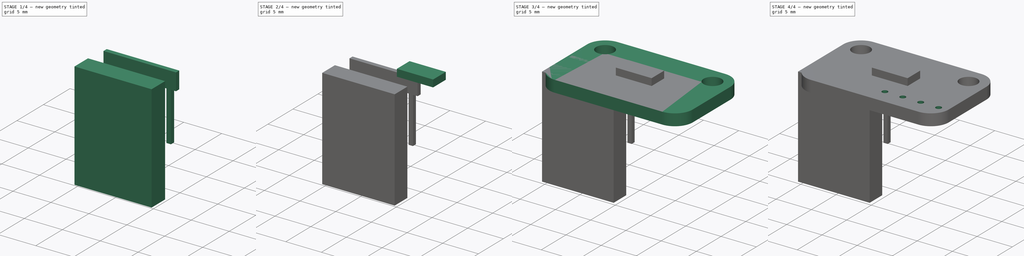
[diagram: build sequence overview — one tinted view per stage of 4, left to right]
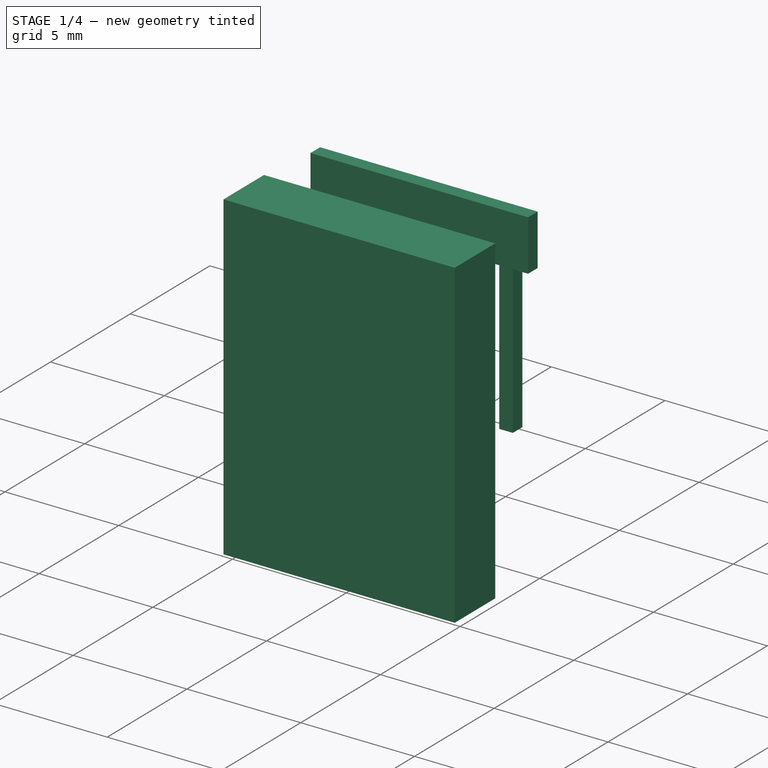
[diagram: stage 1 of 4 — iso view after this stage's code; geometry added in this stage tinted green]
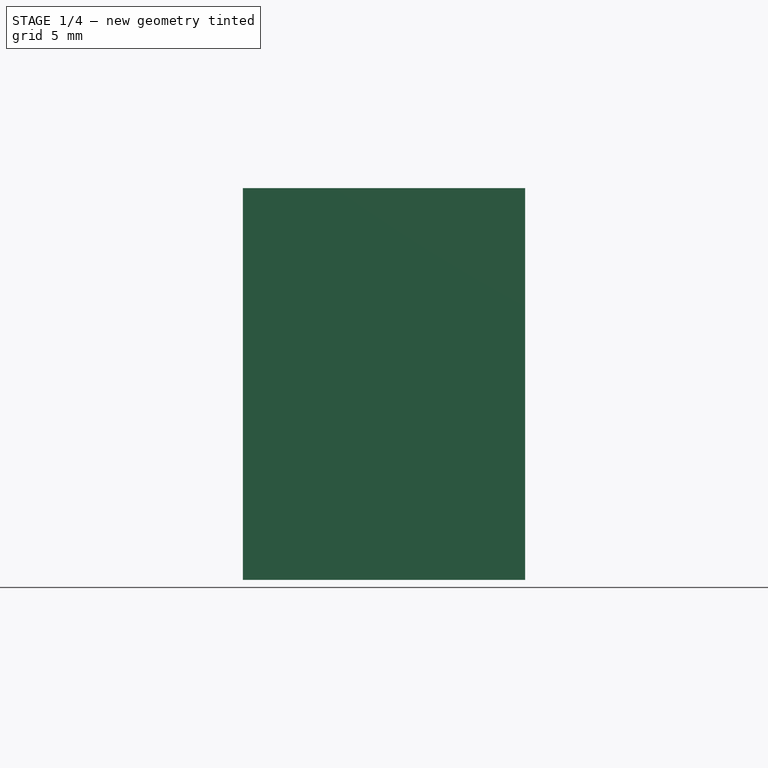
[diagram: stage 1 of 4 — front view after this stage's code; geometry added in this stage tinted green]
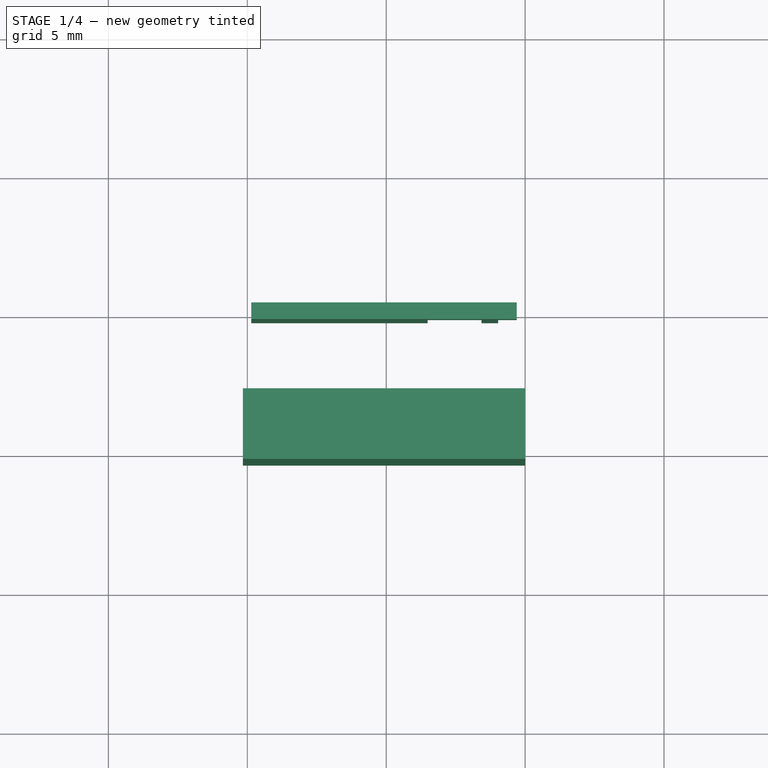
[diagram: stage 1 of 4 — top view after this stage's code; geometry added in this stage tinted green]
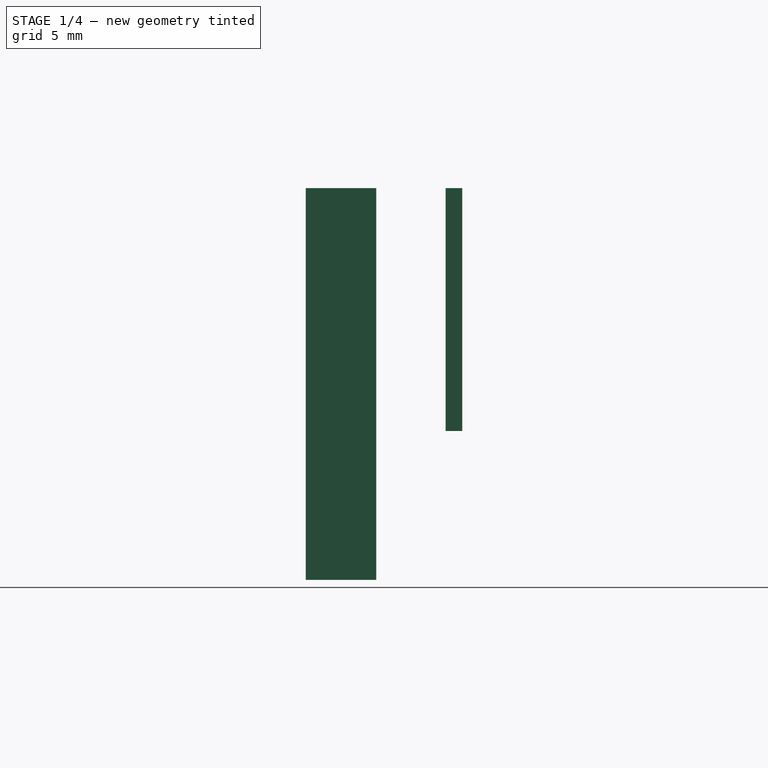
[diagram: stage 1 of 4 — right view after this stage's code; geometry added in this stage tinted green]
FCSTD DOCUMENT  (FreeCAD 0.19R24276 (Git))
Label: Adafruit_I2C_TempSens
License: All rights reserved
LicenseURL: http://en.wikipedia.org/wiki/All_rights_reserved
objects: Sketcher::SketchObject×8, PartDesign::Pad×5, PartDesign::Body×5, PartDesign::Pocket×3, PartDesign::LinearPattern×3, Spreadsheet::Sheet×1, App::Part×1
note: 32 computed .brp shape members not serialized (recipe doc carries the construction recipe); baked Part::Feature solids carry a one-line shape summary decoded from their .brp

FEATURE [PartDesign::Body] Body002  label="PinBlock"
  Group = -> [Sketch004,Pad002]
  Origin = -> Origin006
  Placement = pos=(0,0,-1.6) rot=(0,0,1;0rad)
  Tip = -> Pad002
FEATURE [Sketcher::SketchObject] Sketch005
  FullyConstrained = true
  MapMode = 5
  Placement = pos=(0,0,0) rot=(1,0,0;1.5708rad)
  Support = -> [XZ_Plane007]
  expr: Constraints[11] = <<params>>.pin_square_block_dim + <<params>>.pin_leng
  expr: Constraints[10] = <<params>>.temp_leng / 2 - <<params>>.std_tol
  expr: Constraints[9] = <<params>>.std_tol
  sketch-geometry (4):
    g0: LineSegment StartX=-0.3 StartY=0 StartZ=0 EndX=-9.86 EndY=0 EndZ=0
    g1: LineSegment StartX=-9.86 StartY=0 StartZ=0 EndX=-9.86 EndY=-8.74 EndZ=0
    g2: LineSegment StartX=-9.86 StartY=-8.74 StartZ=0 EndX=-0.3 EndY=-8.74 EndZ=0
    g3: LineSegment StartX=-0.3 StartY=-8.74 StartZ=0 EndX=-0.3 EndY=0 EndZ=0
  constraints (12):
    c: Coincident(g0,g1)
    c: Coincident(g1,g2)
    c: Coincident(g2,g3)
    c: Coincident(g3,g0)
    c: Horizontal(g0)
    c: Horizontal(g2)
    c: Vertical(g1)
    c: Vertical(g3)
    c: PointOnObject(g0,g-1)
    c: DistanceX(g0,g-1) = 0.3
    c: DistanceX(g0,g-1) = 9.86
    c: DistanceY(g1,g1) = 8.74
FEATURE [PartDesign::Pad] Pad003
  Direction = (1,1,1)
  Length = 0.6
  Length2 = 100
  Midplane = true
  Placement = pos=(0,0,0) rot=(1,0,0;1.5708rad)
  Profile = -> Sketch005
  Type = 0
  expr: Length = <<params>>.pin_width
FEATURE [Sketcher::SketchObject] Sketch006
  FullyConstrained = true
  MapMode = 5
  Placement = pos=(0,0,0) rot=(1,0,0;1.5708rad)
  Support = -> [XZ_Plane007]
  expr: Constraints[32] = <<params>>.pin_spacing
  expr: Constraints[25] = <<params>>.pin_leng * 2
  expr: Constraints[27] = <<params>>.pin_square_block_dim / 2
  expr: Constraints[22] = <<params>>.pin_width
  expr: Constraints[24] = <<params>>.pin_square_block_dim - <<params>>.std_tol
  sketch-geometry (13):
    g0: LineSegment StartX=0.97 StartY=-2.24 StartZ=0 EndX=-0.97 EndY=-2.24 EndZ=0
    g1: LineSegment StartX=-0.97 StartY=-2.24 StartZ=0 EndX=-0.97 EndY=-14.64 EndZ=0
    g2: LineSegment StartX=-0.97 StartY=-14.64 StartZ=0 EndX=0.97 EndY=-14.64 EndZ=0
    g3: LineSegment StartX=0.97 StartY=-14.64 StartZ=0 EndX=0.97 EndY=-2.24 EndZ=0
    g4: LineSegment StartX=-1.57 StartY=-2.24 StartZ=0 EndX=-3.51 EndY=-2.24 EndZ=0
    g5: LineSegment StartX=-3.51 StartY=-2.24 StartZ=0 EndX=-3.51 EndY=-14.64 EndZ=0
    g6: LineSegment StartX=-3.51 StartY=-14.64 StartZ=0 EndX=-1.57 EndY=-14.64 EndZ=0
    g7: LineSegment StartX=-1.57 StartY=-14.64 StartZ=0 EndX=-1.57 EndY=-2.24 EndZ=0
    g8: LineSegment StartX=-1.57 StartY=-2.24 StartZ=0 EndX=-0.97 EndY=-2.24 EndZ=0
    g9: LineSegment StartX=-1.57 StartY=-14.64 StartZ=0 EndX=-0.97 EndY=-14.64 EndZ=0
    g10: GeomPoint X=-1.27 Y=-2.24 Z=0
    g11: LineSegment StartX=0.97 StartY=-2.24 StartZ=0 EndX=1.57 EndY=-2.24 EndZ=0
    g12: GeomPoint X=1.27 Y=-2.24 Z=0
  constraints (33):
    c: Coincident(g0,g1)
    c: Coincident(g1,g2)
    c: Coincident(g2,g3)
    c: Coincident(g3,g0)
    c: Horizontal(g0)
    c: Horizontal(g2)
    c: Vertical(g1)
    c: Vertical(g3)
    c: Coincident(g4,g5)
    c: Coincident(g5,g6)
    c: Coincident(g6,g7)
    c: Coincident(g7,g4)
    c: Horizontal(g4)
    c: Horizontal(g6)
    c: Vertical(g5)
    c: Vertical(g7)
    c: Coincident(g8,g4)
    c: Coincident(g8,g0)
    c: Coincident(g9,g6)
    c: Coincident(g9,g1)
    c: Horizontal(g8)
    c: Horizontal(g9)
    c: DistanceX(g9,g9) = 0.6
    c: Equal(g4,g0)
    c: DistanceY(g0,g-1) = 2.24
    c: DistanceY(g3,g3) = 12.4
    c: Symmetric(g0,g4,g10)
    c: DistanceX(g10,g-1) = 1.27
    c: Coincident(g11,g0)
    c: Horizontal(g11)
    c: Equal(g8,g11)
    c: Symmetric(g0,g11,g12)
    c: DistanceX(g10,g12) = 2.54
FEATURE [PartDesign::Pocket] Pocket002
  BaseFeature = -> Pad003
  Length = 5
  Length2 = 100
  Midplane = true
  Placement = pos=(0,0,0) rot=(1,0,0;1.5708rad)
  Profile = -> Sketch006
  Type = 1
FEATURE [PartDesign::Body] Body003  label="Pins"
  Group = -> [Sketch005,Pad003,Sketch006,Pocket002,LinearPattern002]
  Origin = -> Origin007
  Placement = pos=(0,-4.1,-1.6) rot=(0,0,1;0rad)
  Tip = -> LinearPattern002
FEATURE [Sketcher::SketchObject] Sketch007
  FullyConstrained = true
  MapMode = 5
  Support = -> [XY_Plane008]
  expr: Constraints[9] = <<params>>.pin_square_block_dim
  expr: Constraints[10] = <<params>>.pin_square_block_dim * 4
  expr: Constraints[11] = <<params>>.temp_width / 2 - <<params>>.temp_pin_edge_offset
  sketch-geometry (5):
    g0: LineSegment StartX=-10.16 StartY=-2.794 StartZ=0 EndX=0 EndY=-2.794 EndZ=0
    g1: LineSegment StartX=0 StartY=-2.794 StartZ=0 EndX=0 EndY=-5.334 EndZ=0
    g2: LineSegment StartX=0 StartY=-5.334 StartZ=0 EndX=-10.16 EndY=-5.334 EndZ=0
    g3: LineSegment StartX=-10.16 StartY=-5.334 StartZ=0 EndX=-10.16 EndY=-2.794 EndZ=0
    g4: GeomPoint X=-5.08 Y=-4.064 Z=0
  constraints (13):
    c: Coincident(g0,g1)
    c: Coincident(g1,g2)
    c: Coincident(g2,g3)
    c: Coincident(g3,g0)
    c: Horizontal(g0)
    c: Horizontal(g2)
    c: Vertical(g1)
    c: Vertical(g3)
    c: Symmetric(g2,g0,g4)
    c: DistanceY(g1,g1) = 2.54
    c: DistanceX(g0,g0) = 10.16
    c: DistanceY(g4,g-1) = 4.064
    c: PointOnObject(g0,g-2)
FEATURE [PartDesign::Pad] Pad004
  Direction = (1,1,1)
  Length = 14.1
  Length2 = 100
  Profile = -> Sketch007
  Reversed = true
  Type = 0
  expr: Length = <<params>>.pin_jumper_leng
FEATURE [PartDesign::Body] Body004  label="JumperHeader"
  Group = -> [Sketch007,Pad004]
  Origin = -> Origin008
  Placement = pos=(0,0,-4.2) rot=(0,0,1;0rad)
  Tip = -> Pad004
FEATURE [App::Part] Part001  label="AdaF_I2CTemp_Part"
  Group = -> [Body001,Body,Body002,Body003,Body004]
  Origin = -> Origin001
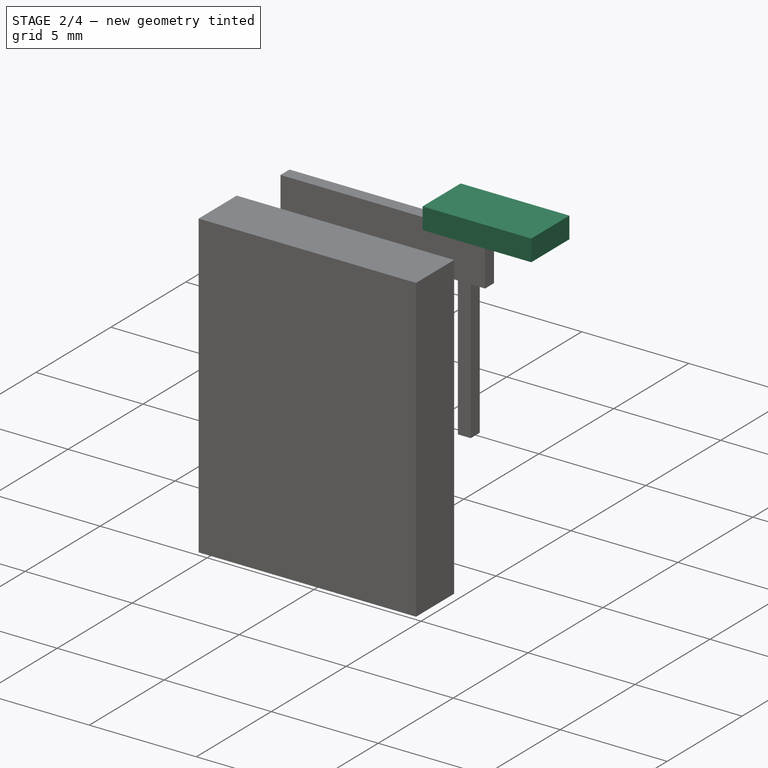
[diagram: stage 2 of 4 — iso view after this stage's code; geometry added in this stage tinted green]
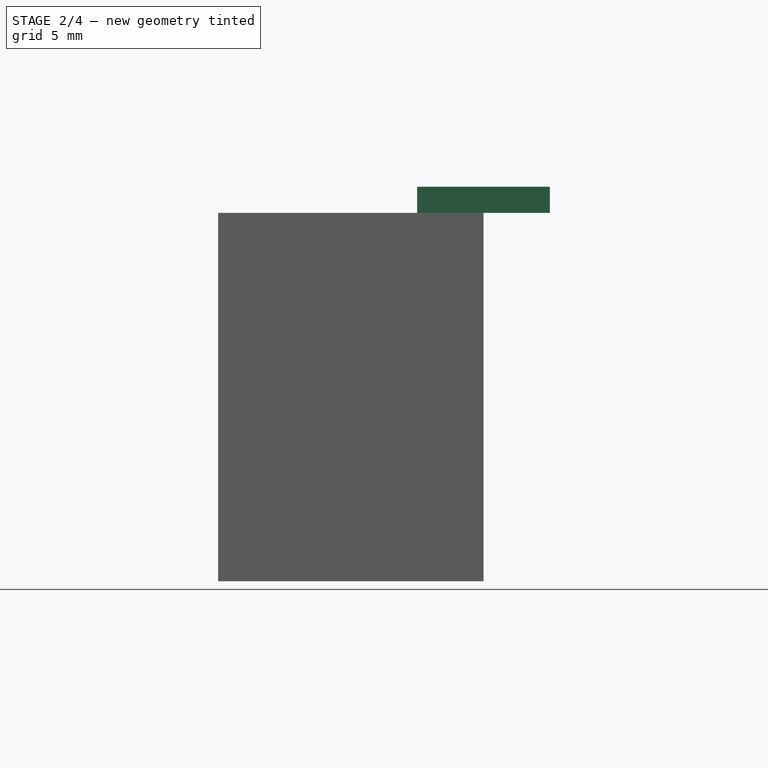
[diagram: stage 2 of 4 — front view after this stage's code; geometry added in this stage tinted green]
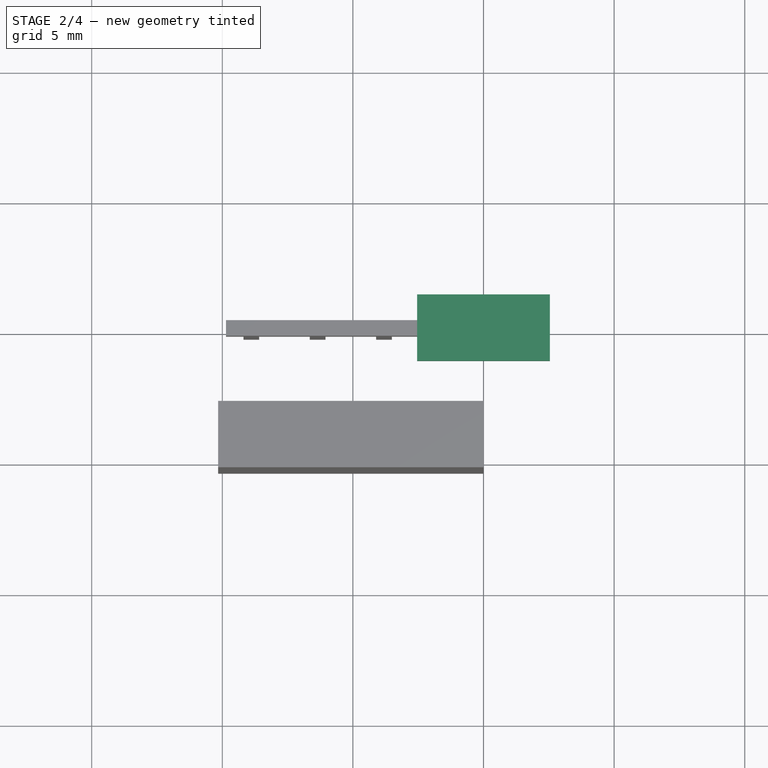
[diagram: stage 2 of 4 — top view after this stage's code; geometry added in this stage tinted green]
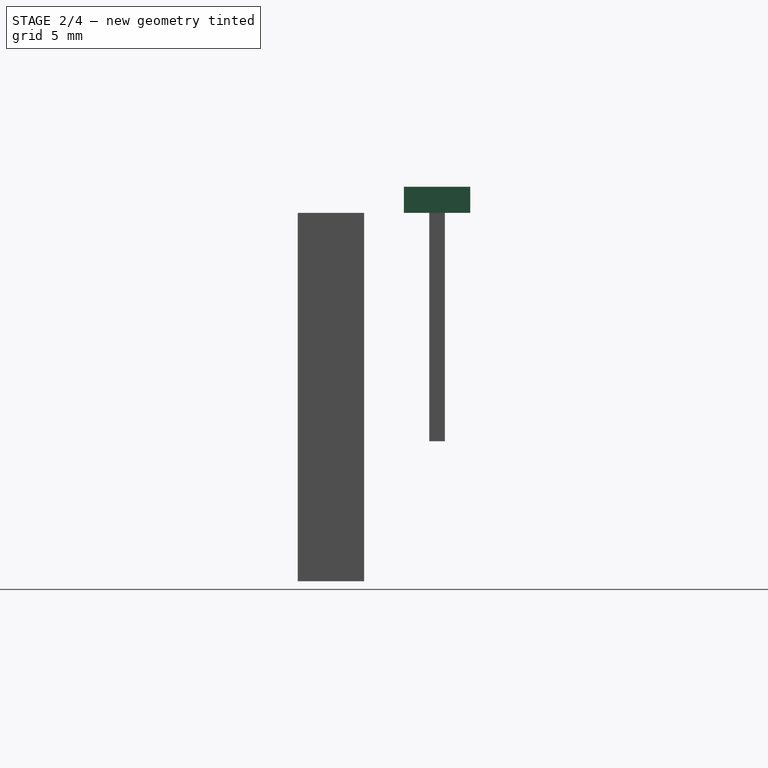
[diagram: stage 2 of 4 — right view after this stage's code; geometry added in this stage tinted green]
FEATURE [PartDesign::Body] Body001  label="MainBoard001"
  Group = -> [Sketch,Pad,Sketch001,Pocket,Sketch002,Pocket001,LinearPattern,LinearPattern001]
  Origin = -> Origin005
  Tip = -> LinearPattern001
FEATURE [Sketcher::SketchObject] Sketch003
  FullyConstrained = true
  MapMode = 5
  Support = -> [XY_Plane]
  expr: Constraints[10] = 2.54 * 2mm
  sketch-geometry (4):
    g0: LineSegment StartX=-2.54 StartY=1.27 StartZ=0 EndX=2.54 EndY=1.27 EndZ=0
    g1: LineSegment StartX=2.54 StartY=1.27 StartZ=0 EndX=2.54 EndY=-1.27 EndZ=0
    g2: LineSegment StartX=2.54 StartY=-1.27 StartZ=0 EndX=-2.54 EndY=-1.27 EndZ=0
    g3: LineSegment StartX=-2.54 StartY=-1.27 StartZ=0 EndX=-2.54 EndY=1.27 EndZ=0
  constraints (11):
    c: Coincident(g0,g1)
    c: Coincident(g1,g2)
    c: Coincident(g2,g3)
    c: Coincident(g3,g0)
    c: Horizontal(g0)
    c: Horizontal(g2)
    c: Vertical(g1)
    c: Vertical(g3)
    c: Symmetric(g2,g0,g-1)
    c: DistanceY(g1,g1) = 2.54
    c: DistanceX(g0,g0) = 5.08
FEATURE [PartDesign::Pad] Pad001
  Direction = (1,1,1)
  Length = 1
  Length2 = 100
  Profile = -> Sketch003
  Type = 0
FEATURE [PartDesign::Body] Body  label="Chip"
  Group = -> [Sketch003,Pad001]
  Origin = -> Origin
  Tip = -> Pad001
FEATURE [Sketcher::SketchObject] Sketch004
  FullyConstrained = true
  MapMode = 5
  Support = -> [XY_Plane006]
  expr: Constraints[11] = <<params>>.temp_width / 2 - <<params>>.temp_pin_edge_offset
  expr: Constraints[10] = <<params>>.pin_square_block_dim * 4
  expr: Constraints[9] = <<params>>.pin_square_block_dim
  sketch-geometry (5):
    g0: LineSegment StartX=-10.16 StartY=-2.794 StartZ=0 EndX=0 EndY=-2.794 EndZ=0
    g1: LineSegment StartX=0 StartY=-2.794 StartZ=0 EndX=0 EndY=-5.334 EndZ=0
    g2: LineSegment StartX=0 StartY=-5.334 StartZ=0 EndX=-10.16 EndY=-5.334 EndZ=0
    g3: LineSegment StartX=-10.16 StartY=-5.334 StartZ=0 EndX=-10.16 EndY=-2.794 EndZ=0
    g4: GeomPoint X=-5.08 Y=-4.064 Z=0
  constraints (13):
    c: Coincident(g0,g1)
    c: Coincident(g1,g2)
    c: Coincident(g2,g3)
    c: Coincident(g3,g0)
    c: Horizontal(g0)
    c: Horizontal(g2)
    c: Vertical(g1)
    c: Vertical(g3)
    c: Symmetric(g2,g0,g4)
    c: DistanceY(g1,g1) = 2.54
    c: DistanceX(g0,g0) = 10.16
    c: DistanceY(g4,g-1) = 4.064
    c: PointOnObject(g0,g-2)
FEATURE [PartDesign::Pad] Pad002
  Direction = (1,1,1)
  Length = 2.54
  Length2 = 100
  Profile = -> Sketch004
  Reversed = true
  Type = 0
  expr: Length = <<params>>.pin_square_block_dim
FEATURE [PartDesign::LinearPattern] LinearPattern002
  BaseFeature = -> Pocket002
  Direction = -> X_Axis007
  Length = 10.16
  Occurrences = 3
  Originals = -> [Pocket002]
  Placement = pos=(0,0,0) rot=(1,0,0;1.5708rad)
  Reversed = true
  expr: Length = <<params>>.pin_square_block_dim * 4
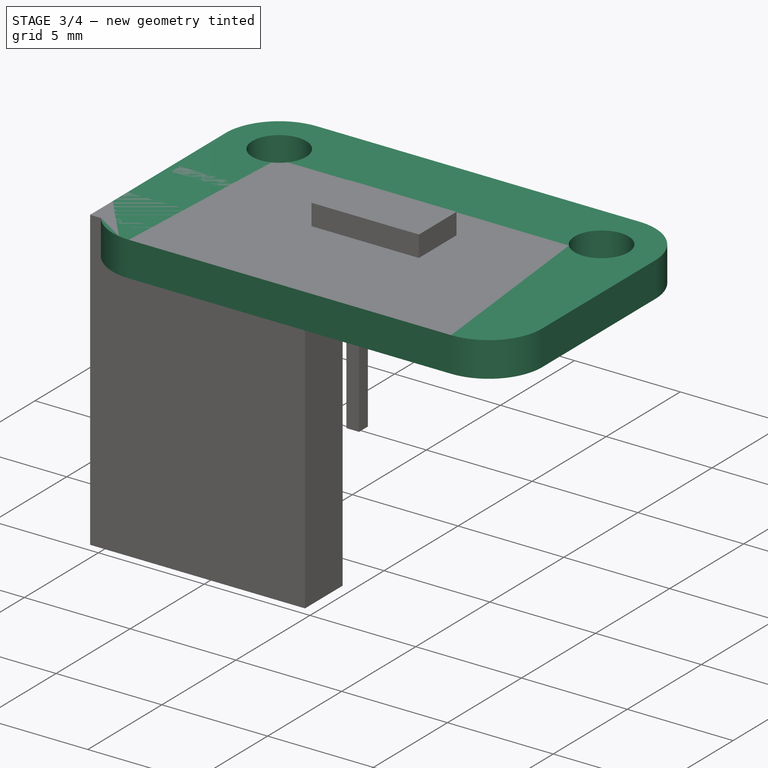
[diagram: stage 3 of 4 — iso view after this stage's code; geometry added in this stage tinted green]
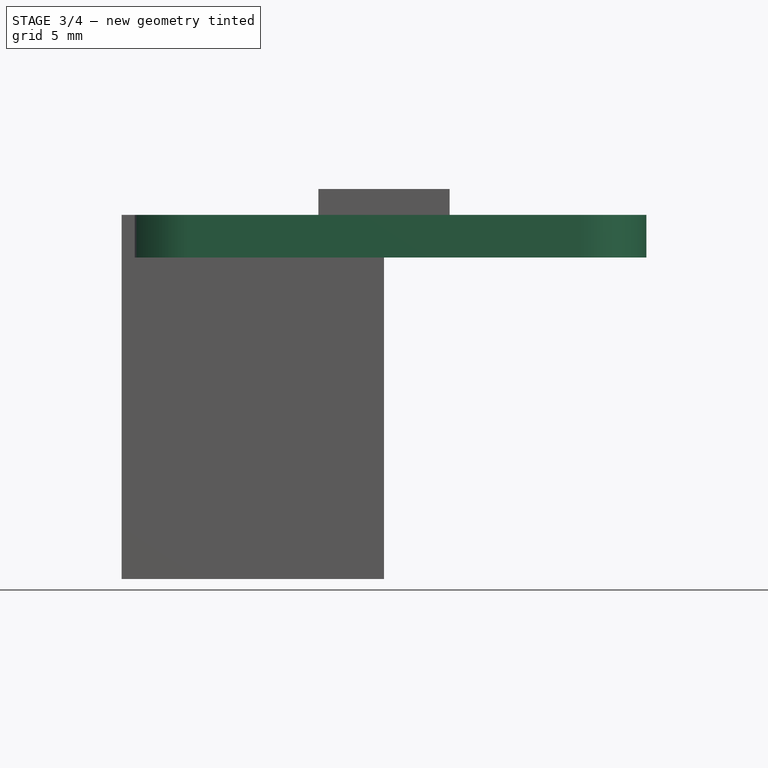
[diagram: stage 3 of 4 — front view after this stage's code; geometry added in this stage tinted green]
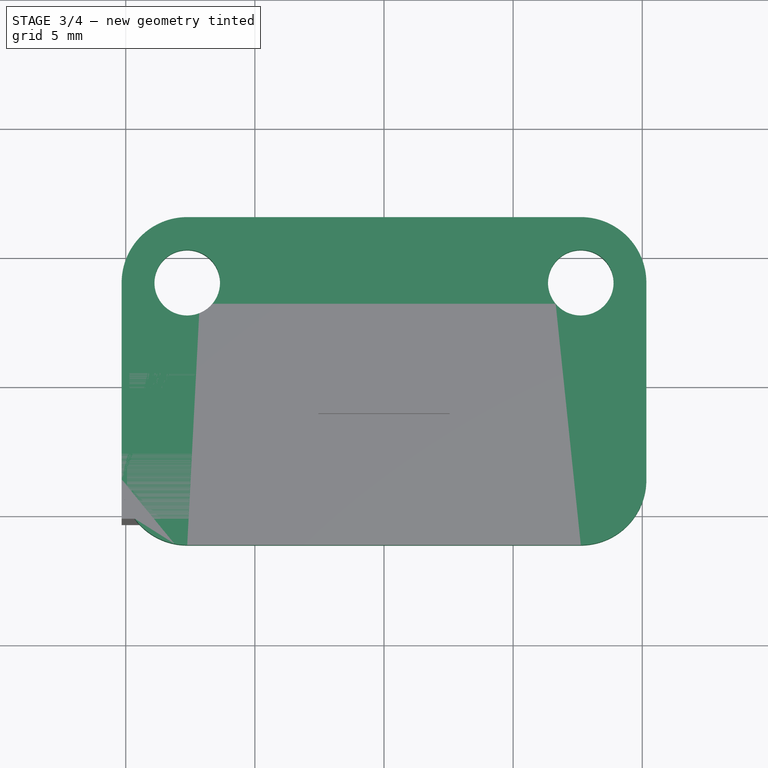
[diagram: stage 3 of 4 — top view after this stage's code; geometry added in this stage tinted green]
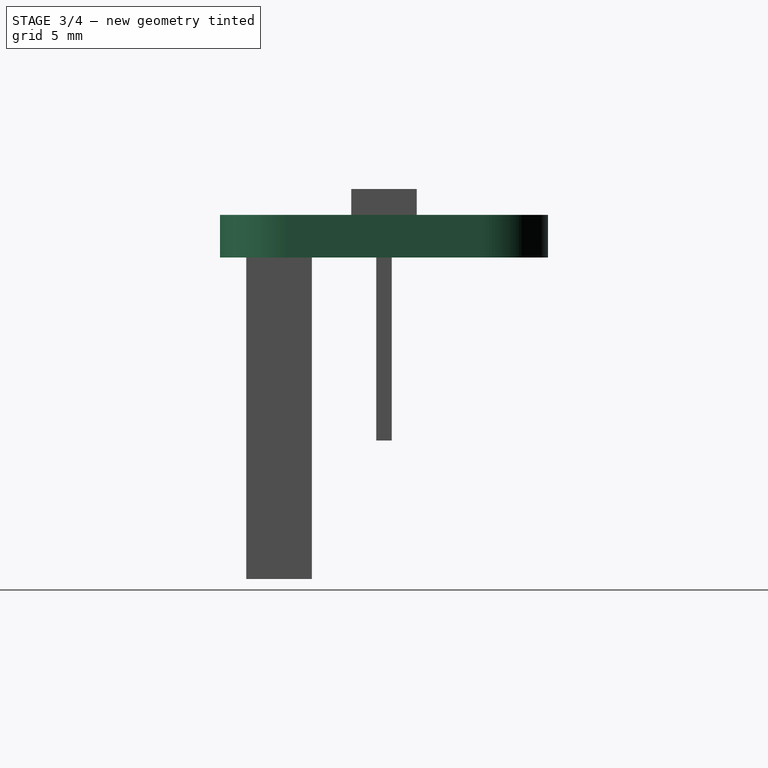
[diagram: stage 3 of 4 — right view after this stage's code; geometry added in this stage tinted green]
FEATURE [Spreadsheet::Sheet] Spreadsheet  label="params"
  cells = A1=Inch to mm; B1(intomm)==25.4mm; E1=std tol; F1(std_tol)==0.3mm; A3=Adafruit I2C Exp; E3=Adafruit Temp I2C; I3=Adafruit Light; B4=Inch; C4=mm; F4=Inch; G4=mm; J4=Inch; K4=mm; A5=Length; B5=1.2; C5(exp_i2c_leng)==B5 * B$1; E5=Length; F5=0.8; G5(temp_leng)==F5 * $B$1; I5=Length; J5=0.65; K5(light_leng)==J5 * $B$1; A6=Width; B6=0.7; C6(exp_i2c_width)==B6 * B$1; E6=Width; F6=0.5; G6(temp_width)==F6 * $B$1; I6=Width; J6=0.65; K6(light_width)==J6 * $B$1; A7=Hole Leng Space; B7=1; C7(exp_i2c_hole_leng_space)==B7 * B$1; E7=Hole Leng Space; F7=0.6; G7(temp_hole_leng_space)==F7 * $B$1; I7=Hole Leng Space; J7=0.45; K7(light_hole_leng_space)==J7 * $B$1; A8=Hole Diam; B8=0.1; C8(exp_i2c_hole_mt_diam)==B8 * B$1; E8=Hole Diam; F8=0.1; G8(temp_hole_diam)==F8 * $B$1; I8=Hole Diam; J8=0.1; K8(light_hole_diam)==J8 * $B$1; A9=Num Pins; B9(exp_i2c_num_pins)=12; E9=Hole Edge Offset; F9=0.1; G9(temp_hole_edge_offset)==F9 * $B$1; I9=Hole Edge Offset; J9=0.1; K9(light_hole_edge_offset)==J9 * $B$1; A10=Pin Width Space; B10=0.6; C10(exp_i2c_pin_width_space)==B10 * B$1; E10=Pin Edge Offset; F10=0.09; G10(temp_pin_edge_offset)==F10 * $B$1; I10=Pin Edge Offset; J10=0.1; K10(light_pin_edge_offset)==J10 * $B$1; E11=Num Pins; F11(temp_num_pins)=8; I11=Num Pins; J11(light_num_pins)=5; A12=General Parameters; A13=Board Thick; B13(board_thickness)==1.65mm; A15=Pin Hole Diam; B15(pin_hole_diam)==0.8mm; A16=Pin Hole Space; B16(pin_hole_space)==2.54mm; A17=Pin Width; B17(pin_width)==0.6mm; A18=Pin Square Block Dim; B18(pin_square_block_dim)==2.54mm; A19=Pin Leng; B19(pin_leng)==6.2mm; A20=Pin Jumper Leng; B20(pin_jumper_leng)==14.1mm; A21=Pin Spacing; B21(pin_spacing)==2.54mm
FEATURE [Sketcher::SketchObject] Sketch
  FullyConstrained = true
  MapMode = 5
  Support = -> [XY_Plane005]
  expr: Constraints[18] = <<params>>.temp_width
  expr: Constraints[17] = <<params>>.temp_leng
  expr: Constraints[16] = <<params>>.temp_hole_diam
  sketch-geometry (8):
    g0: LineSegment StartX=-7.62 StartY=6.35 StartZ=0 EndX=7.62 EndY=6.35 EndZ=0
    g1: LineSegment StartX=10.16 StartY=3.81 StartZ=0 EndX=10.16 EndY=-3.81 EndZ=0
    g2: LineSegment StartX=7.62 StartY=-6.35 StartZ=0 EndX=-7.62 EndY=-6.35 EndZ=0
    g3: LineSegment StartX=-10.16 StartY=-3.81 StartZ=0 EndX=-10.16 EndY=3.81 EndZ=0
    g4: ArcOfCircle CenterX=-7.62 CenterY=3.81 CenterZ=0 NormalX=0 NormalY=0 NormalZ=1 AngleXU=0 Radius=2.54 StartAngle=1.5708 EndAngle=3.14159
    g5: ArcOfCircle CenterX=7.62 CenterY=3.81 CenterZ=0 NormalX=0 NormalY=0 NormalZ=1 AngleXU=0 Radius=2.54 StartAngle=0 EndAngle=1.5708
    g6: ArcOfCircle CenterX=7.62 CenterY=-3.81 CenterZ=0 NormalX=0 NormalY=0 NormalZ=1 AngleXU=0 Radius=2.54 StartAngle=4.71239 EndAngle=6.28319
    g7: ArcOfCircle CenterX=-7.62 CenterY=-3.81 CenterZ=0 NormalX=0 NormalY=0 NormalZ=1 AngleXU=0 Radius=2.54 StartAngle=3.14159 EndAngle=4.71239
  constraints (19):
    c: Horizontal(g0)
    c: Horizontal(g2)
    c: Vertical(g1)
    c: Vertical(g3)
    c: Tangent(g3,g4) = 1.5708
    c: Tangent(g0,g4) = 1.5708
    c: Tangent(g0,g5) = 1.5708
    c: Tangent(g1,g5) = 1.5708
    c: Tangent(g1,g6) = 1.5708
    c: Tangent(g2,g6) = 1.5708
    c: Tangent(g2,g7) = 1.5708
    c: Tangent(g3,g7) = 1.5708
    c: Equal(g4,g5)
    c: Equal(g5,g6)
    c: Equal(g6,g7)
    c: Symmetric(g7,g5,g-1)
    c: Radius(g5) = 2.54
    c: DistanceX(g3,g1) = 20.32
    c: DistanceY(g2,g0) = 12.7
FEATURE [PartDesign::Pad] Pad
  Direction = (1,1,1)
  Length = 1.65
  Length2 = 100
  Profile = -> Sketch
  Reversed = true
  Type = 0
  expr: Length = <<params>>.board_thickness
FEATURE [Sketcher::SketchObject] Sketch001
  FullyConstrained = true
  MapMode = 5
  Support = -> [XY_Plane005]
  expr: Constraints[8] = <<params>>.temp_width / 2 - <<params>>.temp_hole_edge_offset
  expr: Constraints[7] = <<params>>.temp_hole_leng_space
  expr: Constraints[4] = <<params>>.temp_hole_diam
  sketch-geometry (4):
    g0: Circle CenterX=-7.62 CenterY=3.81 CenterZ=0 NormalX=0 NormalY=0 NormalZ=1 AngleXU=0 Radius=1.27
    g1: Circle CenterX=7.62 CenterY=3.81 CenterZ=0 NormalX=0 NormalY=0 NormalZ=1 AngleXU=0 Radius=1.27
    g2: LineSegment StartX=-7.62 StartY=3.81 StartZ=0 EndX=7.62 EndY=3.81 EndZ=0
    g3: GeomPoint X=0 Y=3.81 Z=0
  constraints (9):
    c: Coincident(g2,g0)
    c: Horizontal(g2)
    c: Coincident(g2,g1)
    c: Equal(g0,g1)
    c: Diameter(g1) = 2.54
    c: PointOnObject(g3,g-2)
    c: Symmetric(g0,g1,g3)
    c: DistanceX(g2,g2) = 15.24
    c: DistanceY(g-1,g3) = 3.81
FEATURE [PartDesign::Pocket] Pocket
  BaseFeature = -> Pad
  Length = 5
  Length2 = 100
  Profile = -> Sketch001
  Type = 1
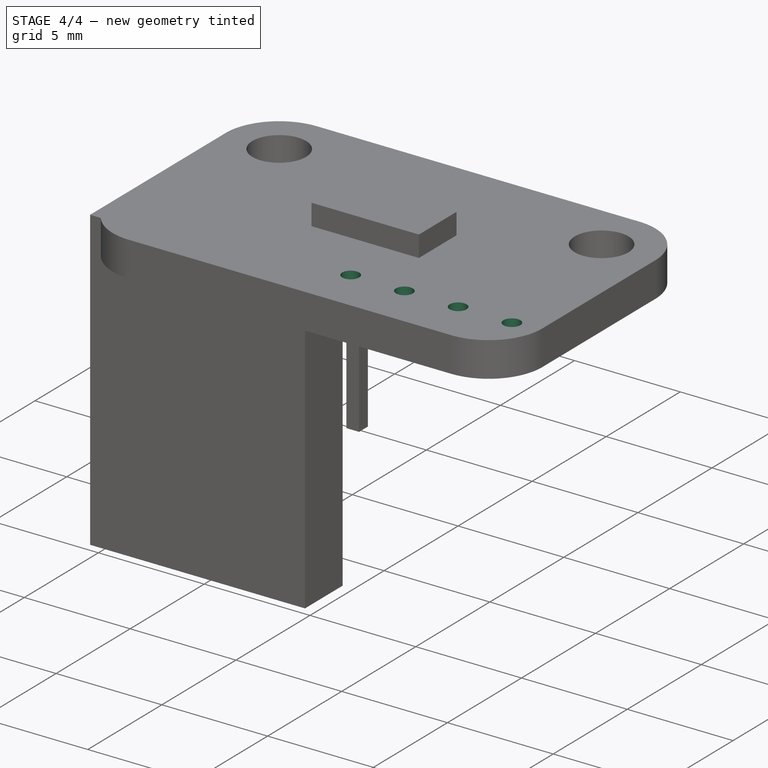
[diagram: stage 4 of 4 — iso view after this stage's code; geometry added in this stage tinted green]
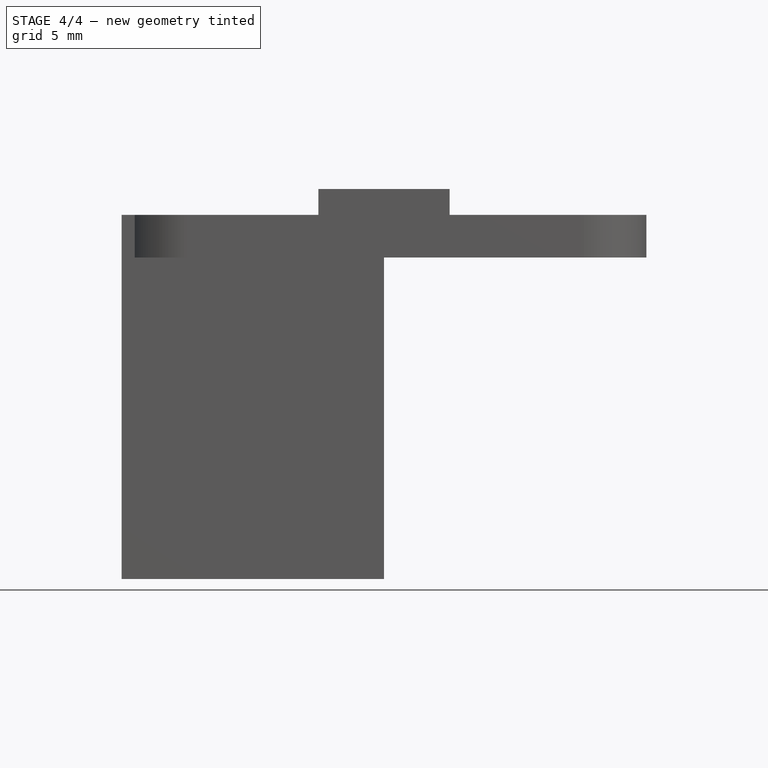
[diagram: stage 4 of 4 — front view after this stage's code; geometry added in this stage tinted green]
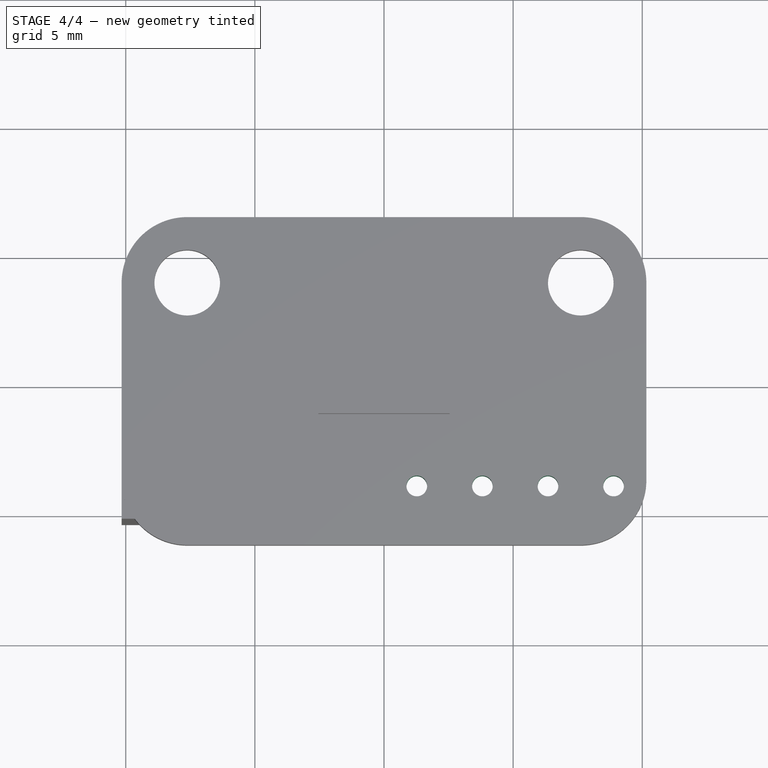
[diagram: stage 4 of 4 — top view after this stage's code; geometry added in this stage tinted green]
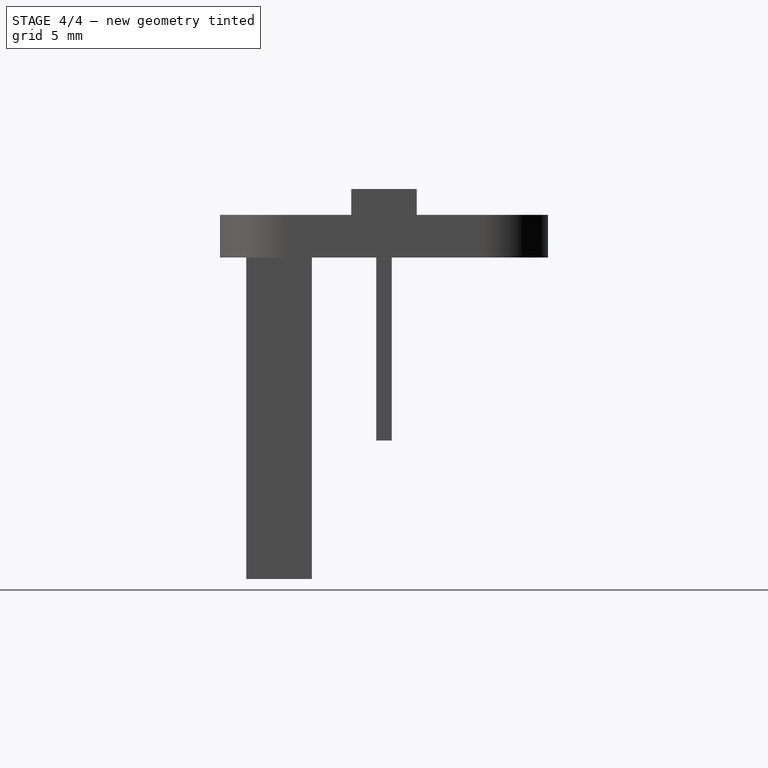
[diagram: stage 4 of 4 — right view after this stage's code; geometry added in this stage tinted green]
FEATURE [Sketcher::SketchObject] Sketch002
  FullyConstrained = true
  MapMode = 5
  Support = -> [XY_Plane005]
  expr: Constraints[8] = <<params>>.temp_width / 2 - <<params>>.temp_pin_edge_offset
  expr: Constraints[7] = <<params>>.pin_spacing
  expr: Constraints[5] = <<params>>.pin_hole_diam
  sketch-geometry (4):
    g0: Circle CenterX=-1.27 CenterY=-4.064 CenterZ=0 NormalX=0 NormalY=0 NormalZ=1 AngleXU=0 Radius=0.4
    g1: Circle CenterX=1.27 CenterY=-4.064 CenterZ=0 NormalX=0 NormalY=0 NormalZ=1 AngleXU=0 Radius=0.4
    g2: LineSegment StartX=-1.27 StartY=-4.064 StartZ=0 EndX=1.27 EndY=-4.064 EndZ=0
    g3: GeomPoint X=0 Y=-4.064 Z=0
  constraints (9):
    c: Coincident(g2,g0)
    c: Coincident(g2,g1)
    c: Horizontal(g2)
    c: PointOnObject(g3,g-2)
    c: Symmetric(g0,g1,g3)
    c: Diameter(g1) = 0.8
    c: Equal(g1,g0)
    c: DistanceX(g2,g2) = 2.54
    c: DistanceY(g3,g-1) = 4.064
FEATURE [PartDesign::Pocket] Pocket001
  BaseFeature = -> Pocket
  Length = 5
  Length2 = 100
  Profile = -> Sketch002
  Type = 1
FEATURE [PartDesign::LinearPattern] LinearPattern
  BaseFeature = -> Pocket001
  Direction = -> X_Axis005
  Length = 7.62
  Occurrences = 4
  Originals = -> [Pocket001]
  expr: Length = <<params>>.pin_spacing * 3
FEATURE [PartDesign::LinearPattern] LinearPattern001
  BaseFeature = -> LinearPattern
  Direction = -> X_Axis005
  Length = 10.16
  Occurrences = 3
  Originals = -> [Pocket001]
  Reversed = true
  expr: Length = <<params>>.pin_spacing * 4
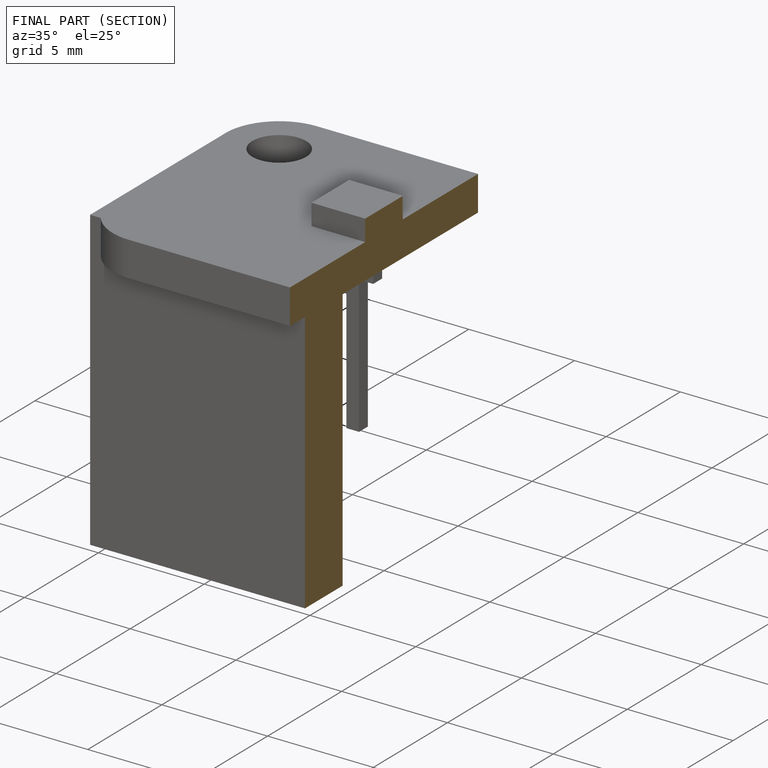
[diagram: finished part — half-section view (interior)]
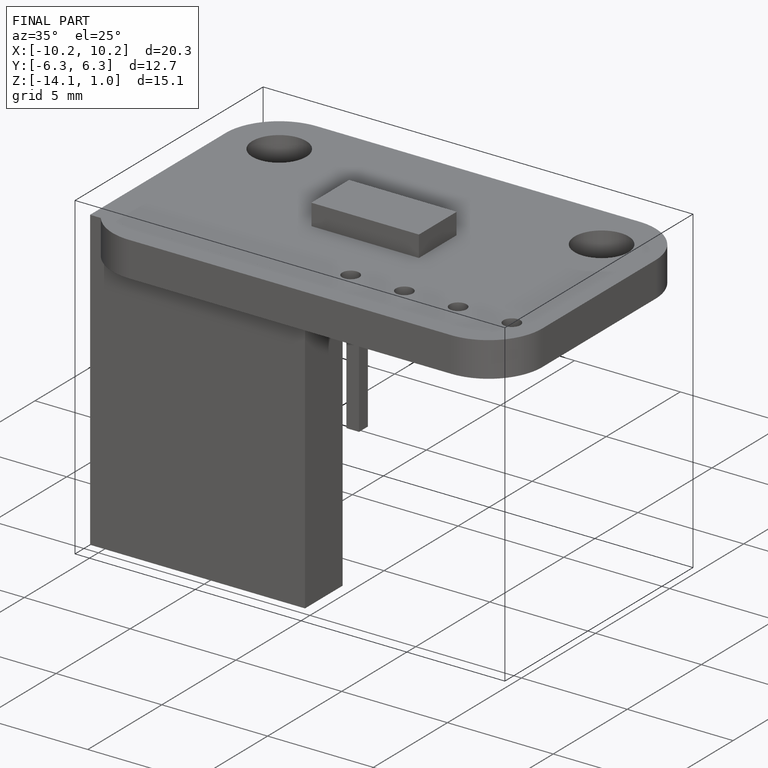
[diagram: finished part — iso view with bounding-box wireframe]
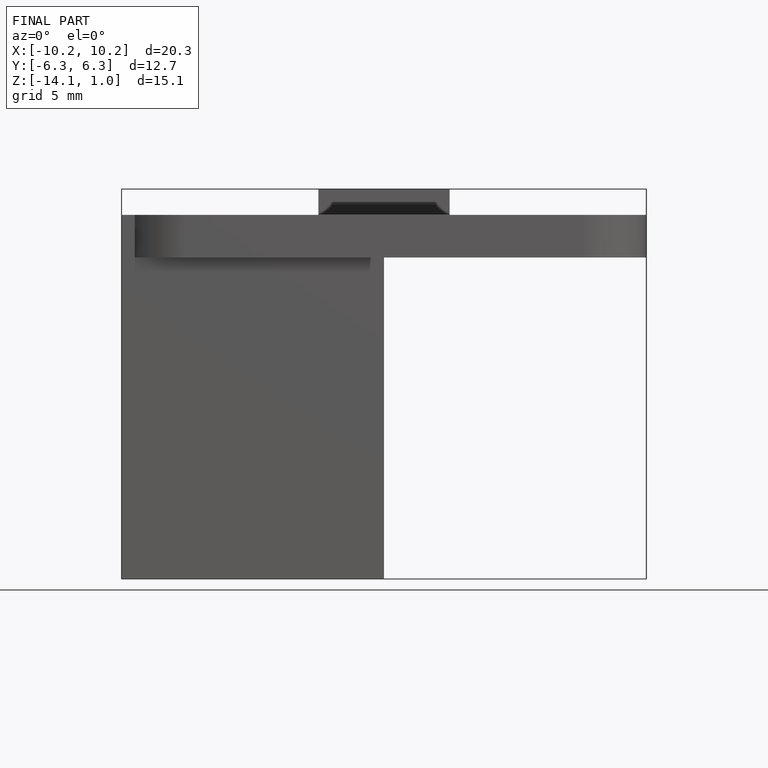
[diagram: finished part — front view with bounding-box wireframe]
